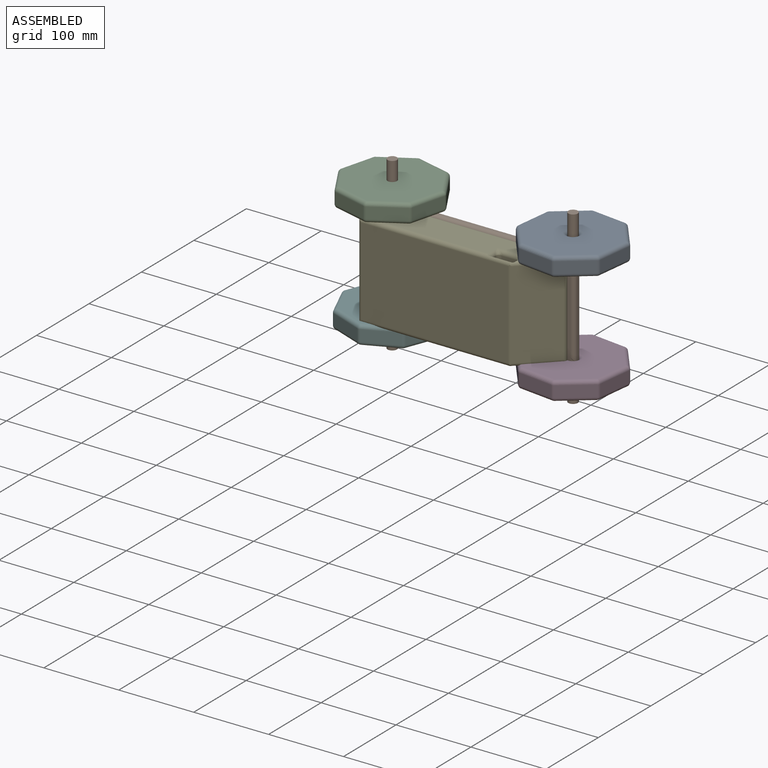
[diagram: assembled view]
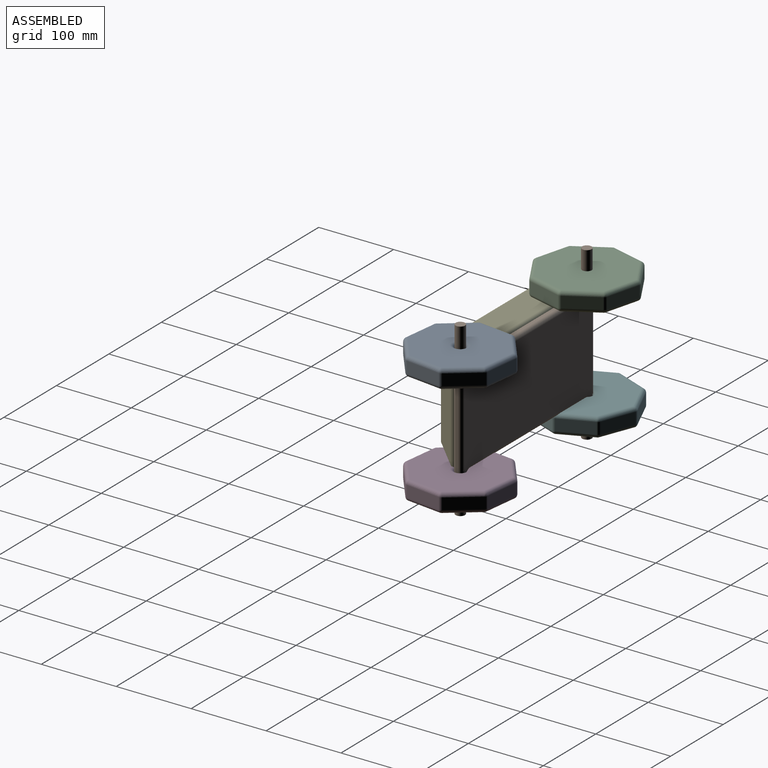
[diagram: assembled view, second angle]
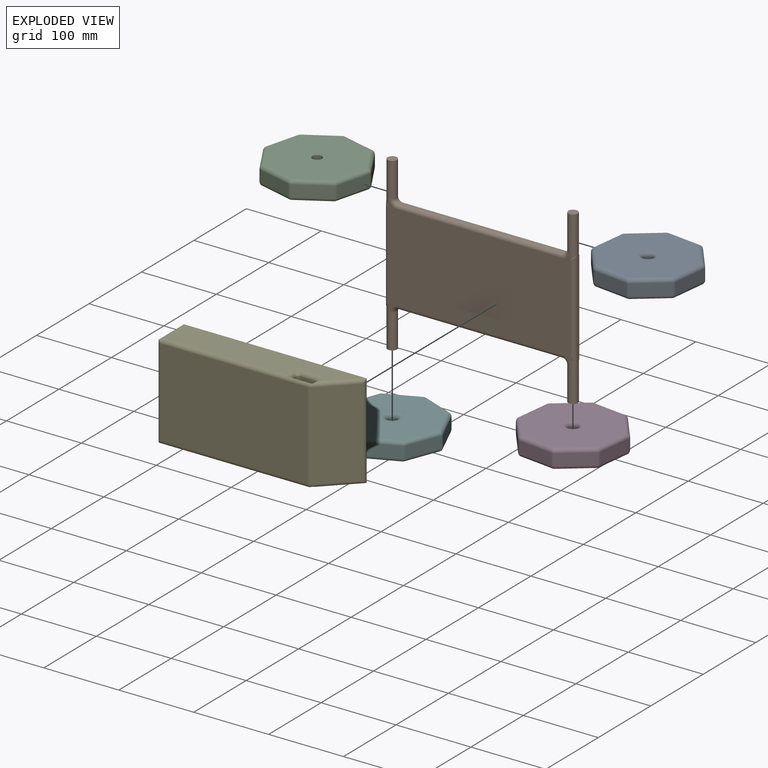
[diagram: exploded view]
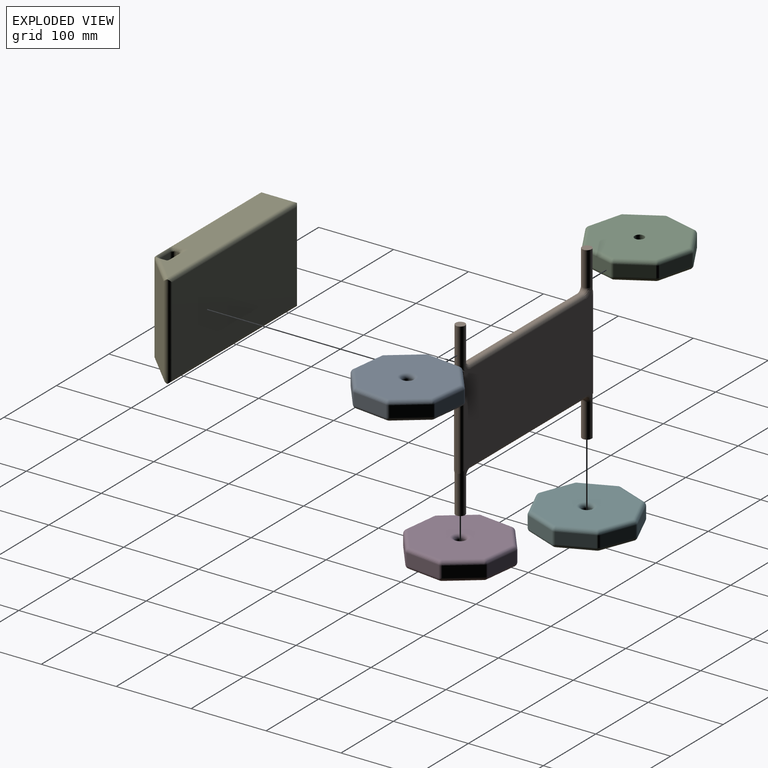
[diagram: exploded view, second angle]
ASSEMBLY  parts=6 mates=3
PART A: 52 faces, bbox 131x131x25.4 mm
  f0: plane 44.93x15.24mm, normal (0.27,0.96,0), area 710.1mm2, adj f39,f44,f47,f50
  f1: plane 40.5x23.03mm, normal (-0.49,0.87,0), area 710.1mm2, adj f36,f45,f46,f50
  f2: plane 44.93x15.24mm, normal (-0.96,0.27,0), area 710.1mm2, adj f26,f35,f36,f37
  f3: plane 40.5x23.03mm, normal (-0.87,-0.49,0), area 710.1mm2, adj f16,f25,f26,f27
  f4: plane 44.93x15.24mm, normal (-0.27,-0.96,0), area 710.1mm2, adj f11,f15,f16,f17
  f5: plane 40.5x23.03mm, normal (0.49,-0.87,0), area 710.1mm2, adj f11,f14,f18,f19
  f6: plane 44.93x15.24mm, normal (0.96,-0.27,0), area 710.1mm2, adj f19,f24,f28,f29
  f7: cylinder r=6.35mm len=20.32mm, axis (0,0,-1), area 810.7mm2, adj f9,f51
  f8: plane 40.5x23.03mm, normal (0.87,0.49,0), area 710.1mm2, adj f29,f34,f38,f39
  f9: plane 120.81x120.81mm, normal (0,0,1), area 10354.8mm2, adj f7,f14,f15,f24,f25,f34,f35,f44
  f10: plane 120.81x120.81mm, normal (0,0,-1), area 10071mm2, adj f17,f18,f27,f28,f37,f38,f46,f47
  f11: cylinder r=5.08mm len=15.24mm, axis (0,0,-1), area 60.8mm2, adj f4,f5,f12,f13
  f12: sphere r=5.08mm, area 20.3mm2, adj f11,f14,f15
  f13: sphere r=5.08mm, area 20.3mm2, adj f11,f17,f18
  f14: cylinder r=5.08mm len=43.01mm, axis (-0.87,-0.49,0), area 371.8mm2, adj f5,f9,f12,f20
  f15: cylinder r=5.08mm len=46.27mm, axis (-0.96,0.27,0), area 371.8mm2, adj f4,f9,f12,f21
  f16: cylinder r=5.08mm len=15.24mm, axis (0,0,-1), area 60.8mm2, adj f3,f4,f21,f22
  f17: cylinder r=5.08mm len=46.27mm, axis (0.96,-0.27,0), area 371.8mm2, adj f4,f10,f13,f22
  f18: cylinder r=5.08mm len=43.01mm, axis (0.87,0.49,0), area 371.8mm2, adj f5,f10,f13,f23
  f19: cylinder r=5.08mm len=15.24mm, axis (0,0,-1), area 60.8mm2, adj f5,f6,f20,f23
  f20: sphere r=5.08mm, area 20.3mm2, adj f14,f19,f24
  f21: sphere r=5.08mm, area 20.3mm2, adj f15,f16,f25
  f22: sphere r=5.08mm, area 20.3mm2, adj f16,f17,f27
  f23: sphere r=5.08mm, area 20.3mm2, adj f18,f19,f28
  f24: cylinder r=5.08mm len=46.27mm, axis (-0.27,-0.96,0), area 371.8mm2, adj f6,f9,f20,f30
  f25: cylinder r=5.08mm len=43.01mm, axis (-0.49,0.87,0), area 371.8mm2, adj f3,f9,f21,f31
  f26: cylinder r=5.08mm len=15.24mm, axis (0,0,-1), area 60.8mm2, adj f2,f3,f31,f32
  f27: cylinder r=5.08mm len=43.01mm, axis (0.49,-0.87,0), area 371.8mm2, adj f3,f10,f22,f32
  f28: cylinder r=5.08mm len=46.27mm, axis (0.27,0.96,0), area 371.8mm2, adj f6,f10,f23,f33
  f29: cylinder r=5.08mm len=15.24mm, axis (0,0,-1), area 60.8mm2, adj f6,f8,f30,f33
  f30: sphere r=5.08mm, area 20.3mm2, adj f24,f29,f34
  f31: sphere r=5.08mm, area 20.3mm2, adj f25,f26,f35
  f32: sphere r=5.08mm, area 20.3mm2, adj f26,f27,f37
  f33: sphere r=5.08mm, area 20.3mm2, adj f28,f29,f38
  f34: cylinder r=5.08mm len=43.01mm, axis (0.49,-0.87,0), area 371.8mm2, adj f8,f9,f30,f40
  f35: cylinder r=5.08mm len=46.27mm, axis (0.27,0.96,0), area 371.8mm2, adj f2,f9,f31,f41
  f36: cylinder r=5.08mm len=15.24mm, axis (0,0,-1), area 60.8mm2, adj f1,f2,f41,f42
  f37: cylinder r=5.08mm len=46.27mm, axis (-0.27,-0.96,0), area 371.8mm2, adj f2,f10,f32,f42
  f38: cylinder r=5.08mm len=43.01mm, axis (-0.49,0.87,0), area 371.8mm2, adj f8,f10,f33,f43
  f39: cylinder r=5.08mm len=15.24mm, axis (0,0,-1), area 60.8mm2, adj f0,f8,f40,f43
  f40: sphere r=5.08mm, area 20.3mm2, adj f34,f39,f44
  f41: sphere r=5.08mm, area 20.3mm2, adj f35,f36,f45
  f42: sphere r=5.08mm, area 20.3mm2, adj f36,f37,f46
  f43: sphere r=5.08mm, area 20.3mm2, adj f38,f39,f47
  f44: cylinder r=5.08mm len=46.27mm, axis (0.96,-0.27,0), area 371.8mm2, adj f0,f9,f40,f48
  f45: cylinder r=5.08mm len=43.01mm, axis (0.87,0.49,0), area 371.8mm2, adj f1,f9,f41,f48
  f46: cylinder r=5.08mm len=43.01mm, axis (-0.87,-0.49,0), area 371.8mm2, adj f1,f10,f42,f49
  f47: cylinder r=5.08mm len=46.27mm, axis (-0.96,0.27,0), area 371.8mm2, adj f0,f10,f43,f49
  f48: sphere r=5.08mm, area 20.3mm2, adj f44,f45,f50
  f49: sphere r=5.08mm, area 20.3mm2, adj f46,f47,f50
  f50: cylinder r=5.08mm len=15.24mm, axis (0,0,-1), area 60.8mm2, adj f0,f1,f48,f49
  f51: torus R=11.43mm, axis (0,0,1), area 410.9mm2, adj f7,f10
PART B: 50 faces, bbox 32.6x254x228.6 mm
  f0: plane 1.27x0.13mm, normal (0,0,-1), area 0.1mm2, adj f10,f20,f24
  f1: plane 1.27x0.13mm, normal (0,0,-1), area 0.1mm2, adj f10,f20,f35
  f2: plane 218.58x2.54mm, normal (0,0,-1), area 555mm2, adj f26,f27,f30,f31
  f3: plane 1.27x0.13mm, normal (0,0,-1), area 0.1mm2, adj f8,f19,f46
  f4: plane 1.27x0.13mm, normal (0,0,1), area 0.1mm2, adj f10,f16,f22
  f5: plane 1.27x0.13mm, normal (0,0,1), area 0.1mm2, adj f10,f16,f33
  f6: plane 218.58x2.54mm, normal (0,0,1), area 555mm2, adj f36,f39,f40,f43
  f7: plane 1.27x0.13mm, normal (0,0,1), area 0.1mm2, adj f8,f14,f44
  f8: plane 127x2.54mm, normal (0,-1,0), area 322.6mm2, adj f3,f7,f9,f11,f45,f48
  f9: plane 1.27x0.13mm, normal (0,0,-1), area 0.1mm2, adj f8,f19,f49
  f10: plane 127x2.54mm, normal (0,1,0), area 322.6mm2, adj f0,f1,f4,f5,f23,f34
  f11: plane 1.27x0.13mm, normal (0,0,1), area 0.1mm2, adj f8,f14,f47
  f12: plane 243.84x137.16mm, normal (1,0,0), area 28612.8mm2, adj f14,f16,f19,f20,f22,f23,f24,f29
  f13: plane 243.84x137.16mm, normal (-1,0,0), area 28612.8mm2, adj f14,f16,f19,f20,f25,f26,f28,f33
  f14: cylinder r=6.35mm len=55.88mm, axis (0,0,-1), area 1958.2mm2, adj f7,f11,f12,f13,f15,f36,f44,f47
  f15: plane 12.7x12.7mm, normal (0,0,1), area 126.7mm2, adj f14
  f16: cylinder r=6.35mm len=55.88mm, axis (0,0,-1), area 1958.2mm2, adj f4,f5,f12,f13,f17,f22,f33,f43
  f17: plane 12.7x12.7mm, normal (0,0,1), area 126.7mm2, adj f16
  f18: plane 12.7x12.7mm, normal (0,0,-1), area 126.7mm2, adj f19
  f19: cylinder r=6.35mm len=55.88mm, axis (0,0,1), area 1958.2mm2, adj f3,f9,f12,f13,f18,f30,f46,f49
  f20: cylinder r=6.35mm len=55.88mm, axis (0,0,1), area 1958.2mm2, adj f0,f1,f12,f13,f21,f24,f27,f35
  f21: plane 12.7x12.7mm, normal (0,0,-1), area 126.7mm2, adj f20
  f22: cylinder r=5.08mm len=6.35mm, axis (0,1,0), area 6mm2, adj f4,f12,f16,f23
  f23: cylinder r=5.08mm len=127mm, axis (0,0,-1), area 984mm2, adj f10,f12,f22,f24
  f24: cylinder r=5.08mm len=6.35mm, axis (0,-1,0), area 6mm2, adj f0,f12,f20,f23
  f25: bspline ~13.28x10.16mm, area 73.1mm2, adj f13,f26,f27
  f26: cylinder r=5.08mm len=218.58mm, axis (0,1,0), area 1744.2mm2, adj f2,f13,f25,f28
  f27: torus R=11.43mm, axis (0,0,1), area 54mm2, adj f2,f20,f25,f29
  f28: bspline ~11.36x10.16mm, area 73.1mm2, adj f13,f26,f30
  f29: bspline ~13.28x10.16mm, area 73.1mm2, adj f12,f27,f31
  f30: torus R=11.43mm, axis (0,0,1), area 54mm2, adj f2,f19,f28,f32
  f31: cylinder r=5.08mm len=218.58mm, axis (0,-1,0), area 1744.2mm2, adj f2,f12,f29,f32
  f32: bspline ~11.36x10.16mm, area 73.1mm2, adj f12,f30,f31
  f33: cylinder r=5.08mm len=6.35mm, axis (0,-1,0), area 6mm2, adj f5,f13,f16,f34
  f34: cylinder r=5.08mm len=127mm, axis (0,0,1), area 984mm2, adj f10,f13,f33,f35
  f35: cylinder r=5.08mm len=6.35mm, axis (0,1,0), area 6mm2, adj f1,f13,f20,f34
  f36: torus R=11.43mm, axis (0,0,1), area 54mm2, adj f6,f14,f37,f38
  f37: bspline ~13.28x10.16mm, area 73.1mm2, adj f13,f36,f39
  f38: bspline ~13.28x10.16mm, area 73.1mm2, adj f12,f36,f40
  f39: cylinder r=5.08mm len=218.58mm, axis (0,-1,0), area 1744.2mm2, adj f6,f13,f37,f41
  f40: cylinder r=5.08mm len=218.58mm, axis (0,1,0), area 1744.2mm2, adj f6,f12,f38,f42
  f41: bspline ~11.36x10.16mm, area 73.1mm2, adj f13,f39,f43
  f42: bspline ~11.36x10.16mm, area 73.1mm2, adj f12,f40,f43
  f43: torus R=11.43mm, axis (0,0,1), area 54mm2, adj f6,f16,f41,f42
  f44: cylinder r=5.08mm len=6.35mm, axis (0,-1,0), area 6mm2, adj f7,f13,f14,f45
  f45: cylinder r=5.08mm len=127mm, axis (0,0,-1), area 984mm2, adj f8,f13,f44,f46
  f46: cylinder r=5.08mm len=6.35mm, axis (0,1,0), area 6mm2, adj f3,f13,f19,f45
  f47: cylinder r=5.08mm len=6.35mm, axis (0,1,0), area 6mm2, adj f11,f12,f14,f48
  f48: cylinder r=5.08mm len=127mm, axis (0,0,1), area 984mm2, adj f8,f12,f47,f49
  f49: cylinder r=5.08mm len=6.35mm, axis (0,-1,0), area 6mm2, adj f9,f12,f19,f48
PART C: same geometry as A
PART D: same geometry as A
PART E: 42 faces, bbox 50.8x127x248.6 mm
  f0: plane 236.66x40.64mm, normal (0,-1,0), area 8128.2mm2, adj f10,f11,f12,f13,f15,f16,f17
  f1: plane 236.66x40.64mm, normal (0,1,0), area 8128.2mm2, adj f18,f19,f20,f21,f22,f24,f25
  f2: plane 196.02x116.84mm, normal (1,0,0), area 22902.5mm2, adj f15,f20,f28,f29
  f3: plane 116.84x40.64mm, normal (0.71,0,0.71), area 6715.2mm2, adj f11,f24,f26,f29
  f4: plane 236.66x116.84mm, normal (-1,0,0), area 27650.9mm2, adj f10,f21,f26,f27
  f5: plane 116.84x40.64mm, normal (0,0,-1), area 4748.4mm2, adj f12,f18,f27,f28
  f6: plane 116.84x2.9mm, normal (0,0,1), area 338.5mm2, adj f17,f19,f37,f40
  f7: plane 116.84x18.57mm, normal (1,0,0), area 2169.2mm2, adj f16,f22,f34,f37
  f8: plane 116.84x2.9mm, normal (0,0,-1), area 338.5mm2, adj f13,f25,f31,f34
  f9: plane 116.84x18.57mm, normal (-1,0,0), area 2169.2mm2, adj f14,f23,f31,f40
  f10: cylinder r=5.08mm len=244.94mm, axis (0,0,1), area 1921.5mm2, adj f0,f4,f11,f12,f26,f27
  f11: cylinder r=5.08mm len=48.93mm, axis (0.71,0,-0.71), area 461.2mm2, adj f0,f3,f10,f13,f14,f15,f26,f29
  f12: cylinder r=5.08mm len=47.82mm, axis (-1,0,0), area 353mm2, adj f0,f5,f10,f15,f27,f28
  f13: cylinder r=5.08mm len=17.29mm, axis (1,0,0), area 64.8mm2, adj f0,f8,f11,f32,f35
  f14: cylinder r=5.08mm len=27.57mm, axis (0,0,-1), area 112.2mm2, adj f9,f11,f15,f32,f41
  f15: cylinder r=5.08mm len=201.55mm, axis (0,0,-1), area 1501.9mm2, adj f0,f2,f11,f12,f14,f17,f28,f29
  f16: cylinder r=5.08mm len=38.89mm, axis (0,0,1), area 229.2mm2, adj f0,f7,f35,f38
  f17: cylinder r=5.08mm len=19.63mm, axis (-1,0,0), area 77.1mm2, adj f0,f6,f15,f38,f41
  f18: cylinder r=5.08mm len=47.82mm, axis (1,0,0), area 353mm2, adj f1,f5,f20,f21,f27,f28
  f19: cylinder r=5.08mm len=19.63mm, axis (-1,0,0), area 77.1mm2, adj f1,f6,f20,f36,f39
  f20: cylinder r=5.08mm len=201.55mm, axis (0,0,1), area 1501.9mm2, adj f1,f2,f18,f19,f23,f24,f28,f29
  f21: cylinder r=5.08mm len=244.94mm, axis (0,0,-1), area 1921.5mm2, adj f1,f4,f18,f24,f26,f27
  f22: cylinder r=5.08mm len=38.89mm, axis (0,0,1), area 229.2mm2, adj f1,f7,f33,f36
  f23: cylinder r=5.08mm len=27.57mm, axis (0,0,-1), area 112.2mm2, adj f9,f20,f24,f30,f39
  f24: cylinder r=5.08mm len=48.93mm, axis (-0.71,0,0.71), area 461.2mm2, adj f1,f3,f20,f21,f23,f25,f26,f29
  f25: cylinder r=5.08mm len=17.29mm, axis (1,0,0), area 64.8mm2, adj f1,f8,f24,f30,f33
  f26: cylinder r=5.08mm len=126.23mm, axis (0,1,0), area 1454.7mm2, adj f3,f4,f10,f11,f21,f24
  f27: cylinder r=5.08mm len=124.02mm, axis (0,-1,0), area 961mm2, adj f4,f5,f10,f12,f18,f21
  f28: cylinder r=5.08mm len=124.02mm, axis (0,1,0), area 961mm2, adj f2,f5,f12,f15,f18,f20
  f29: cylinder r=5.08mm len=120.73mm, axis (0,-1,0), area 473.9mm2, adj f2,f3,f11,f15,f20,f24
  f30: bspline ~7.48x7.48mm, area 35.3mm2, adj f23,f24,f25,f31
  f31: cylinder r=5.08mm len=116.84mm, axis (0,1,0), area 932.3mm2, adj f8,f9,f30,f32
  f32: bspline ~7.48x7.48mm, area 35.3mm2, adj f11,f13,f14,f31
  f33: bspline ~10.16x10.16mm, area 27.2mm2, adj f22,f25,f34
  f34: cylinder r=5.08mm len=116.84mm, axis (0,-1,0), area 932.3mm2, adj f7,f8,f33,f35
  f35: bspline ~10.16x10.16mm, area 27.2mm2, adj f13,f16,f34
  f36: bspline ~10.16x10.16mm, area 27.1mm2, adj f19,f22,f37
  f37: cylinder r=5.08mm len=116.84mm, axis (0,1,0), area 932.3mm2, adj f6,f7,f36,f38
  f38: bspline ~10.16x10.16mm, area 27.2mm2, adj f16,f17,f37
  f39: bspline ~8.84x8.84mm, area 40.9mm2, adj f19,f20,f23,f40
  f40: cylinder r=5.08mm len=116.84mm, axis (0,-1,0), area 932.3mm2, adj f6,f9,f39,f41
  f41: bspline ~8.84x8.84mm, area 40.9mm2, adj f14,f15,f17,f40
PART F: same geometry as A
PLACE A rot(axis=(0.2,-0.98,0),180deg) t=(120.65,-6.35,88.9)mm
PLACE B rot(axis=(0.71,0.71,0),180deg) t=(0,-12.7,0)mm
PLACE C rot(axis=(0,0,-1),44.3deg) t=(-120.65,-6.35,63.5)mm
PLACE D rot(axis=(0.2,-0.98,0),180deg) t=(120.65,-6.35,-60.79)mm
PLACE E rot(axis=(-0.58,0.58,-0.58),120deg) t=(-70.38,-12.7,-63.5)mm
PLACE F rot(axis=(0.95,-0.31,0),180deg) t=(-120.65,-6.35,-60.79)mm
MATE revolute D.f7 <-> B.f16  axis (0,0,-1) through (120.65,-6.35,-86.19)mm
MATE revolute F.f7 <-> B.f14  axis (0,0,-1) through (-120.65,-6.35,-86.19)mm
MATE planar B.f13 <-> E.f4  axis (0,-1,0) through (0,-12.7,0)mm
